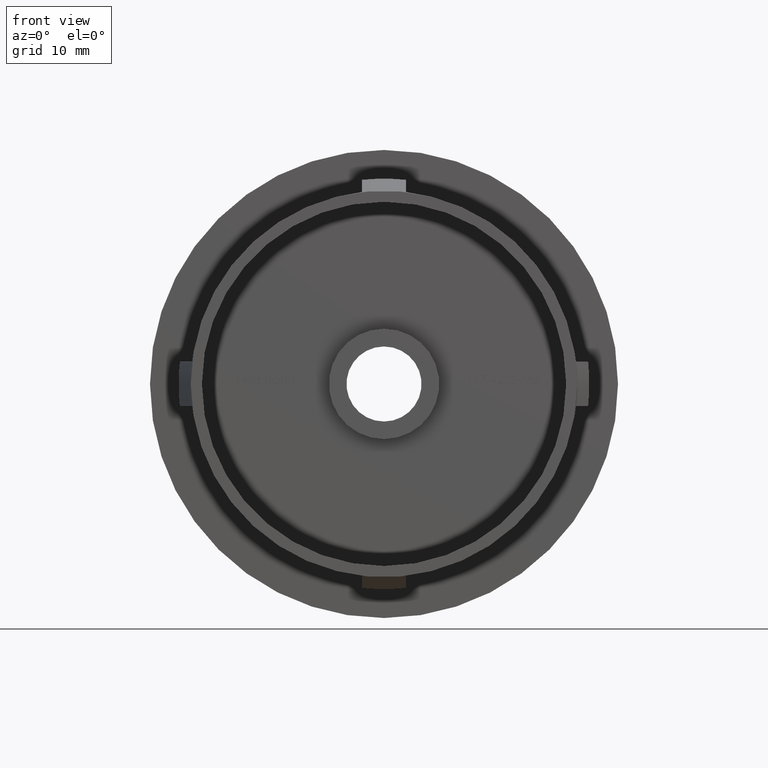
[diagram: clean part render]
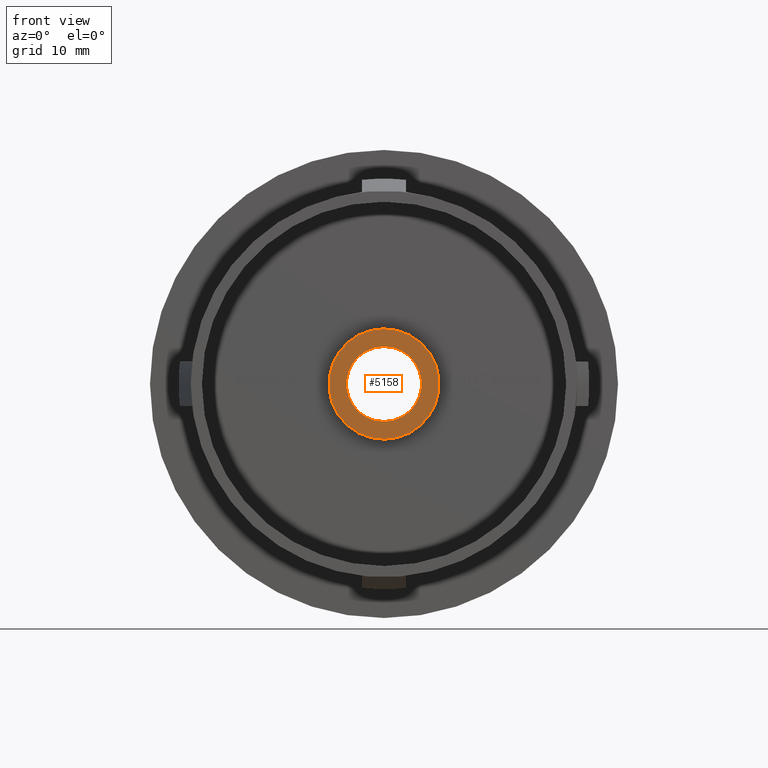
[diagram: same view with one face highlighted and labeled with its STEP entity id]
A machine part, front view. The second image highlights one B-rep face of the part: STEP entity #5158.
In plain terms, the highlighted planar face has unit normal (0, -1, 0).
Its self-contained STEP definition (entity closure, byte-faithful):
#570 = AXIS2_PLACEMENT_3D ( 'NONE', #11643, #7902, #13012 ) ;
#741 = DIRECTION ( 'NONE',  ( 0.0000000000000000000, -1.000000000000000000, 0.0000000000000000000 ) ) ;
#1716 = VERTEX_POINT ( 'NONE', #7179 ) ;
#2326 = EDGE_LOOP ( 'NONE', ( #10282, #8427 ) ) ;
#3025 = CIRCLE ( 'NONE', #570, 3.399999999999989700 ) ;
#3502 = AXIS2_PLACEMENT_3D ( 'NONE', #5869, #15900, #15945 ) ;
#3728 = CIRCLE ( 'NONE', #14170, 5.000000000000000000 ) ;
#3729 = PLANE ( 'NONE',  #13071 ) ;
#3759 = ORIENTED_EDGE ( 'NONE', *, *, #13679, .F. ) ;
#4012 = FACE_BOUND ( 'NONE', #12186, .T. ) ;
#4166 = CIRCLE ( 'NONE', #15091, 3.399999999999989700 ) ;
#4605 = DIRECTION ( 'NONE',  ( -0.0000000000000000000, -1.000000000000000000, -0.0000000000000000000 ) ) ;
#4685 = CARTESIAN_POINT ( 'NONE',  ( -3.793955783758507100E-015, 22.89999999999999900, -5.000000000000000000 ) ) ;
#4764 = DIRECTION ( 'NONE',  ( 0.0000000000000000000, -0.0000000000000000000, -1.000000000000000000 ) ) ;
#5158 = ADVANCED_FACE ( 'NONE', ( #4012, #6353 ), #3729, .T. ) ;
#5286 = ORIENTED_EDGE ( 'NONE', *, *, #5936, .F. ) ;
#5566 = VERTEX_POINT ( 'NONE', #6945 ) ;
#5644 = CARTESIAN_POINT ( 'NONE',  ( -4.406279183332183600E-015, 22.89999999999999900, 0.0000000000000000000 ) ) ;
#5866 = DIRECTION ( 'NONE',  ( 0.0000000000000000000, 0.0000000000000000000, -1.000000000000000000 ) ) ;
#5869 = CARTESIAN_POINT ( 'NONE',  ( -4.406279183332183600E-015, 22.89999999999999900, 0.0000000000000000000 ) ) ;
#5936 = EDGE_CURVE ( 'NONE', #1716, #14582, #3025, .T. ) ;
#6353 = FACE_OUTER_BOUND ( 'NONE', #2326, .T. ) ;
#6945 = CARTESIAN_POINT ( 'NONE',  ( -4.406279183332183600E-015, 22.89999999999999900, 5.000000000000000000 ) ) ;
#7179 = CARTESIAN_POINT ( 'NONE',  ( 4.163799117100988200E-016, 22.89999999999999900, 3.399999999999989300 ) ) ;
#7902 = DIRECTION ( 'NONE',  ( -0.0000000000000000000, -1.000000000000000000, -0.0000000000000000000 ) ) ;
#8427 = ORIENTED_EDGE ( 'NONE', *, *, #15499, .T. ) ;
#8465 = EDGE_CURVE ( 'NONE', #5566, #14154, #10144, .T. ) ;
#10144 = CIRCLE ( 'NONE', #3502, 5.000000000000000000 ) ;
#10282 = ORIENTED_EDGE ( 'NONE', *, *, #8465, .T. ) ;
#11643 = CARTESIAN_POINT ( 'NONE',  ( 0.0000000000000000000, 22.89999999999999900, 0.0000000000000000000 ) ) ;
#12186 = EDGE_LOOP ( 'NONE', ( #3759, #5286 ) ) ;
#13012 = DIRECTION ( 'NONE',  ( 0.0000000000000000000, 0.0000000000000000000, -1.000000000000000000 ) ) ;
#13071 = AXIS2_PLACEMENT_3D ( 'NONE', #14963, #14863, #4764 ) ;
#13491 = CARTESIAN_POINT ( 'NONE',  ( 0.0000000000000000000, 22.89999999999999900, 0.0000000000000000000 ) ) ;
#13679 = EDGE_CURVE ( 'NONE', #14582, #1716, #4166, .T. ) ;
#14154 = VERTEX_POINT ( 'NONE', #4685 ) ;
#14160 = CARTESIAN_POINT ( 'NONE',  ( 0.0000000000000000000, 22.89999999999999900, -3.399999999999989700 ) ) ;
#14170 = AXIS2_PLACEMENT_3D ( 'NONE', #5644, #741, #5866 ) ;
#14535 = DIRECTION ( 'NONE',  ( 0.0000000000000000000, 0.0000000000000000000, -1.000000000000000000 ) ) ;
#14582 = VERTEX_POINT ( 'NONE', #14160 ) ;
#14863 = DIRECTION ( 'NONE',  ( 0.0000000000000000000, -1.000000000000000000, 0.0000000000000000000 ) ) ;
#14963 = CARTESIAN_POINT ( 'NONE',  ( -4.406279183332183600E-015, 22.89999999999999900, 0.0000000000000000000 ) ) ;
#15091 = AXIS2_PLACEMENT_3D ( 'NONE', #13491, #4605, #14535 ) ;
#15499 = EDGE_CURVE ( 'NONE', #14154, #5566, #3728, .T. ) ;
#15900 = DIRECTION ( 'NONE',  ( 0.0000000000000000000, -1.000000000000000000, 0.0000000000000000000 ) ) ;
#15945 = DIRECTION ( 'NONE',  ( 0.0000000000000000000, 0.0000000000000000000, -1.000000000000000000 ) ) ;